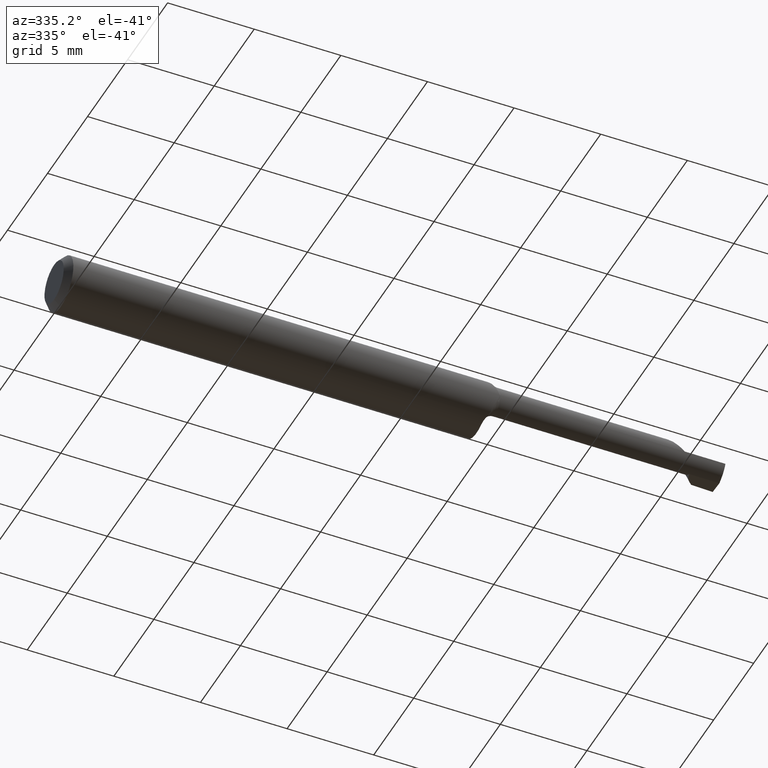
[diagram: clean part render]
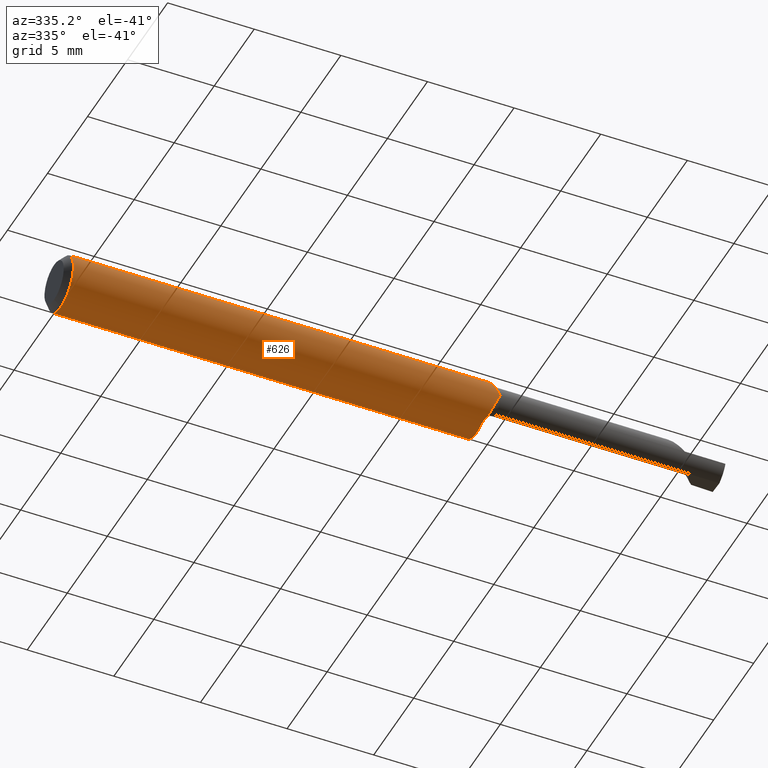
[diagram: same view with one face highlighted and labeled with its STEP entity id]
A machine part, auxiliary view. The second image highlights one B-rep face of the part: STEP entity #626.
In plain terms, the highlighted cylindrical surface (edge-blend (fillet) strip) has radius 1.5837 mm, axis along (-1, -0, -0).
Its self-contained STEP definition (entity closure, byte-faithful):
#9 = VERTEX_POINT ( 'NONE', #453 ) ;
#27 = VERTEX_POINT ( 'NONE', #448 ) ;
#36 = CARTESIAN_POINT ( 'NONE',  ( 0.9780728829995560814, -0.06062511249535040142, 0.01695961461494563394 ) ) ;
#47 = EDGE_CURVE ( 'NONE', #420, #141, #620, .T. ) ;
#52 = AXIS2_PLACEMENT_3D ( 'NONE', #665, #196, #670 ) ;
#63 = VERTEX_POINT ( 'NONE', #166 ) ;
#65 = CARTESIAN_POINT ( 'NONE',  ( 0.9668230926184977481, -0.04188734258381466430, -0.04618412098618038253 ) ) ;
#72 = CARTESIAN_POINT ( 'NONE',  ( 0.9627151797249005050, -0.03695513534442331632, 0.05035240833426896101 ) ) ;
#92 = CIRCLE ( 'NONE', #199, 0.06235000000000000264 ) ;
#112 = CARTESIAN_POINT ( 'NONE',  ( 0.01500000000000134386, -0.03386738844375219992, 0.05235000000000000764 ) ) ;
#113 = DIRECTION ( 'NONE',  ( 1.000000000000000000, -0.000000000000000000, -0.000000000000000000 ) ) ;
#131 = EDGE_CURVE ( 'NONE', #466, #420, #596, .T. ) ;
#137 = EDGE_CURVE ( 'NONE', #27, #431, #318, .T. ) ;
#141 = VERTEX_POINT ( 'NONE', #462 ) ;
#151 = DIRECTION ( 'NONE',  ( 0.000000000000000000, 0.000000000000000000, -1.000000000000000000 ) ) ;
#154 = B_SPLINE_CURVE_WITH_KNOTS ( 'NONE', 3,
 ( #728, #526, #72, #794 ),
 .UNSPECIFIED., .F., .F.,
 ( 4, 4 ),
 ( 0.0005326994379201768770, 0.0008220502116935388430 ),
 .UNSPECIFIED. ) ;
#164 = DIRECTION ( 'NONE',  ( 1.000000000000000000, 0.000000000000000000, 0.000000000000000000 ) ) ;
#166 = CARTESIAN_POINT ( 'NONE',  ( 0.9668230926185069629, -0.04188734258383922798, 0.04618412098615692907 ) ) ;
#168 = EDGE_CURVE ( 'NONE', #63, #466, #154, .T. ) ;
#169 = CARTESIAN_POINT ( 'NONE',  ( 0.9615945859696534148, -0.03386738844375219298, 0.05235000000000000764 ) ) ;
#186 = AXIS2_PLACEMENT_3D ( 'NONE', #747, #821, #151 ) ;
#196 = DIRECTION ( 'NONE',  ( -1.000000000000000000, -0.000000000000000000, -0.000000000000000000 ) ) ;
#199 = AXIS2_PLACEMENT_3D ( 'NONE', #763, #432, #837 ) ;
#201 = CARTESIAN_POINT ( 'NONE',  ( 0.9644495984685876877, -0.03967502319616320744, -0.04819061538548213841 ) ) ;
#205 = CARTESIAN_POINT ( 'NONE',  ( 0.9627394238178514918, -0.03698980613378194393, -0.05032389122870733339 ) ) ;
#243 = CARTESIAN_POINT ( 'NONE',  ( 0.9679240393098628159, -0.04518090574038784168, 0.04319697723817567808 ) ) ;
#251 = CARTESIAN_POINT ( 'NONE',  ( 0.9605027863892505735, -0.03089035930692959203, -0.05428190755769668474 ) ) ;
#268 = FACE_OUTER_BOUND ( 'NONE', #639, .T. ) ;
#298 = CARTESIAN_POINT ( 'NONE',  ( 0.9733608407994862599, -0.05541450060920725951, 0.02890732079374615585 ) ) ;
#318 = B_SPLINE_CURVE_WITH_KNOTS ( 'NONE', 3,
 ( #860, #602, #251, #205, #201, #65 ),
 .UNSPECIFIED., .F., .F.,
 ( 4, 2, 4 ),
 ( 0.000000000000000000, 0.0002864145370874134153, 0.0005728290741748268307 ),
 .UNSPECIFIED. ) ;
#324 = CARTESIAN_POINT ( 'NONE',  ( 1.500000000000000222, -0.03386738844375219298, 0.05235000000000000764 ) ) ;
#327 = ORIENTED_EDGE ( 'NONE', *, *, #168, .T. ) ;
#328 = CIRCLE ( 'NONE', #186, 0.06235000000000000264 ) ;
#340 = B_SPLINE_CURVE_WITH_KNOTS ( 'NONE', 3,
 ( #847, #569, #781, #573, #650, #705, #835, #778 ),
 .UNSPECIFIED., .F., .F.,
 ( 4, 2, 2, 4 ),
 ( -1.232468420275311648E-05, 0.0006845810555994350736, 0.001033033925500527169, 0.001381486795401619264 ),
 .UNSPECIFIED. ) ;
#369 = CARTESIAN_POINT ( 'NONE',  ( 0.9668230926185069629, -0.04188734258383922798, 0.04618412098615692907 ) ) ;
#371 = B_SPLINE_CURVE_WITH_KNOTS ( 'NONE', 3,
 ( #369, #243, #704, #446, #298, #36, #492, #640 ),
 .UNSPECIFIED., .F., .F.,
 ( 4, 2, 2, 4 ),
 ( 0.0003275052594905618125, 0.0006762988127000884144, 0.001025092365909615125, 0.001722679472328668328 ),
 .UNSPECIFIED. ) ;
#386 = EDGE_CURVE ( 'NONE', #141, #761, #92, .T. ) ;
#412 = CARTESIAN_POINT ( 'NONE',  ( 0.01500000000000134212, 0.03386738844375219992, 0.05235000000000000764 ) ) ;
#418 = EDGE_CURVE ( 'NONE', #9, #431, #340, .T. ) ;
#420 = VERTEX_POINT ( 'NONE', #112 ) ;
#431 = VERTEX_POINT ( 'NONE', #447 ) ;
#432 = DIRECTION ( 'NONE',  ( 1.000000000000000000, -0.000000000000000000, -0.000000000000000000 ) ) ;
#438 = ORIENTED_EDGE ( 'NONE', *, *, #418, .F. ) ;
#446 = CARTESIAN_POINT ( 'NONE',  ( 0.9718967624399823535, -0.05327582947148823411, 0.03268742703747924694 ) ) ;
#447 = CARTESIAN_POINT ( 'NONE',  ( 0.9668230926184977481, -0.04188734258381466430, -0.04618412098618038253 ) ) ;
#448 = CARTESIAN_POINT ( 'NONE',  ( 0.9600000000000001865, -0.02407033118675252700, -0.05751644683531875746 ) ) ;
#452 = VECTOR ( 'NONE', #523, 39.37007874015748143 ) ;
#453 = CARTESIAN_POINT ( 'NONE',  ( 0.9850000000000000977, -0.06235000000000000264, 1.735473943143141055E-37 ) ) ;
#462 = CARTESIAN_POINT ( 'NONE',  ( 0.01500000000000134212, 0.000000000000000000, -0.06235000000000000264 ) ) ;
#466 = VERTEX_POINT ( 'NONE', #169 ) ;
#487 = ORIENTED_EDGE ( 'NONE', *, *, #663, .F. ) ;
#490 = ORIENTED_EDGE ( 'NONE', *, *, #47, .T. ) ;
#492 = CARTESIAN_POINT ( 'NONE',  ( 0.9815349335579961476, -0.06235000000000000264, 0.008473637336016253893 ) ) ;
#496 = ORIENTED_EDGE ( 'NONE', *, *, #854, .T. ) ;
#497 = CARTESIAN_POINT ( 'NONE',  ( 1.500000000000000222, 0.03386738844375219298, 0.05235000000000000764 ) ) ;
#506 = AXIS2_PLACEMENT_3D ( 'NONE', #638, #113, #646 ) ;
#519 = ORIENTED_EDGE ( 'NONE', *, *, #820, .F. ) ;
#523 = DIRECTION ( 'NONE',  ( -1.000000000000000000, -0.000000000000000000, -0.000000000000000000 ) ) ;
#526 = CARTESIAN_POINT ( 'NONE',  ( 0.9644478820178166156, -0.03967342330290272306, 0.04819206643134345269 ) ) ;
#569 = CARTESIAN_POINT ( 'NONE',  ( 0.9815383180537490260, -0.06234999999999999570, -0.008465360730053970301 ) ) ;
#573 = CARTESIAN_POINT ( 'NONE',  ( 0.9733513085088904004, -0.05540118331818136982, -0.02893183908063363952 ) ) ;
#596 = LINE ( 'NONE', #324, #452 ) ;
#602 = CARTESIAN_POINT ( 'NONE',  ( 0.9600000000000001865, -0.02760321198240126006, -0.05603795476090285554 ) ) ;
#620 = CIRCLE ( 'NONE', #506, 0.06235000000000000264 ) ;
#626 = ADVANCED_FACE ( 'NONE', ( #268 ), #788, .T. ) ;
#638 = CARTESIAN_POINT ( 'NONE',  ( 0.01500000000000134212, 0.000000000000000000, 0.000000000000000000 ) ) ;
#639 = EDGE_LOOP ( 'NONE', ( #438, #519, #327, #662, #490, #669, #496, #487, #807 ) ) ;
#640 = CARTESIAN_POINT ( 'NONE',  ( 0.9850000000000000977, -0.06235000000000000264, 1.735473943143141055E-37 ) ) ;
#646 = DIRECTION ( 'NONE',  ( 0.000000000000000000, 0.000000000000000000, -1.000000000000000000 ) ) ;
#650 = CARTESIAN_POINT ( 'NONE',  ( 0.9718915996061383566, -0.05326613659972041087, -0.03270099444302623087 ) ) ;
#654 = VERTEX_POINT ( 'NONE', #692 ) ;
#662 = ORIENTED_EDGE ( 'NONE', *, *, #131, .T. ) ;
#663 = EDGE_CURVE ( 'NONE', #27, #654, #328, .T. ) ;
#665 = CARTESIAN_POINT ( 'NONE',  ( 1.500000000000000222, 0.000000000000000000, 0.000000000000000000 ) ) ;
#669 = ORIENTED_EDGE ( 'NONE', *, *, #386, .T. ) ;
#670 = DIRECTION ( 'NONE',  ( 0.000000000000000000, 0.000000000000000000, 1.000000000000000000 ) ) ;
#690 = VECTOR ( 'NONE', #164, 39.37007874015748143 ) ;
#692 = CARTESIAN_POINT ( 'NONE',  ( 0.9600000000000001865, 0.03386738844375219992, 0.05235000000000000764 ) ) ;
#704 = CARTESIAN_POINT ( 'NONE',  ( 0.9691797043405472323, -0.04817178312116815464, 0.03982789478660356958 ) ) ;
#705 = CARTESIAN_POINT ( 'NONE',  ( 0.9691848299242588061, -0.04818140601776291915, -0.03981442527494758604 ) ) ;
#728 = CARTESIAN_POINT ( 'NONE',  ( 0.9668230926185069629, -0.04188734258383922798, 0.04618412098615692907 ) ) ;
#747 = CARTESIAN_POINT ( 'NONE',  ( 0.9600000000000001865, 0.000000000000000000, 0.000000000000000000 ) ) ;
#761 = VERTEX_POINT ( 'NONE', #412 ) ;
#763 = CARTESIAN_POINT ( 'NONE',  ( 0.01500000000000134212, 0.000000000000000000, 0.000000000000000000 ) ) ;
#778 = CARTESIAN_POINT ( 'NONE',  ( 0.9668230926184977481, -0.04188734258381466430, -0.04618412098618038253 ) ) ;
#781 = CARTESIAN_POINT ( 'NONE',  ( 0.9780546057524355241, -0.06061042127271575736, -0.01700526494094724630 ) ) ;
#788 = CYLINDRICAL_SURFACE ( 'NONE', #52, 0.06235000000000000264 ) ;
#794 = CARTESIAN_POINT ( 'NONE',  ( 0.9615945859696534148, -0.03386738844375219298, 0.05235000000000000764 ) ) ;
#807 = ORIENTED_EDGE ( 'NONE', *, *, #137, .T. ) ;
#820 = EDGE_CURVE ( 'NONE', #63, #9, #371, .T. ) ;
#821 = DIRECTION ( 'NONE',  ( 1.000000000000000000, 0.000000000000000000, 0.000000000000000000 ) ) ;
#834 = LINE ( 'NONE', #497, #690 ) ;
#835 = CARTESIAN_POINT ( 'NONE',  ( 0.9679257608793903067, -0.04518605594249516105, -0.04319230618944103206 ) ) ;
#837 = DIRECTION ( 'NONE',  ( 0.000000000000000000, 0.000000000000000000, -1.000000000000000000 ) ) ;
#847 = CARTESIAN_POINT ( 'NONE',  ( 0.9850000000000000977, -0.06235000000000000264, 1.735473943143141055E-37 ) ) ;
#854 = EDGE_CURVE ( 'NONE', #761, #654, #834, .T. ) ;
#860 = CARTESIAN_POINT ( 'NONE',  ( 0.9600000000000001865, -0.02407033118675252700, -0.05751644683531875746 ) ) ;